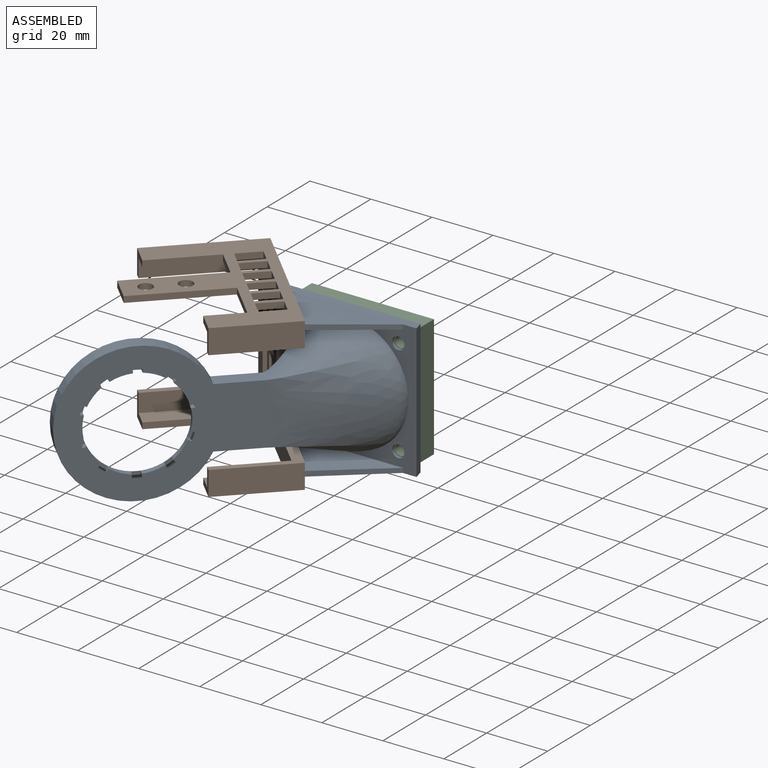
[diagram: assembled view]
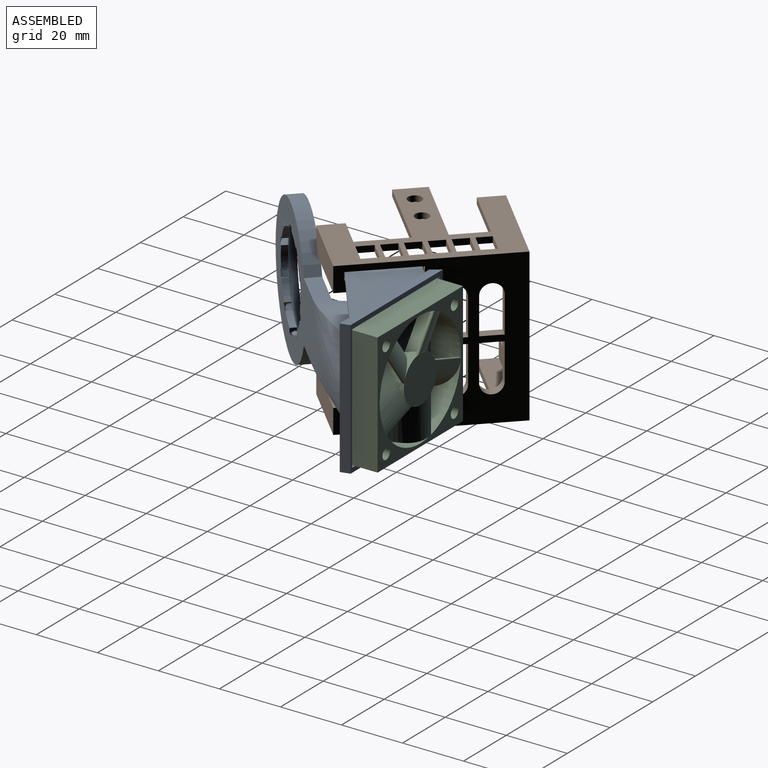
[diagram: assembled view, second angle]
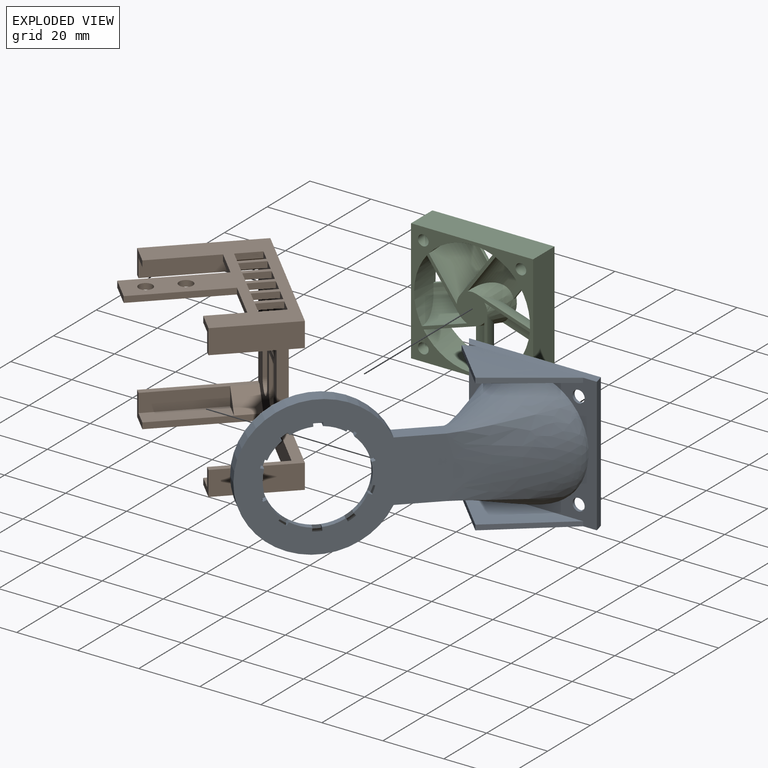
[diagram: exploded view]
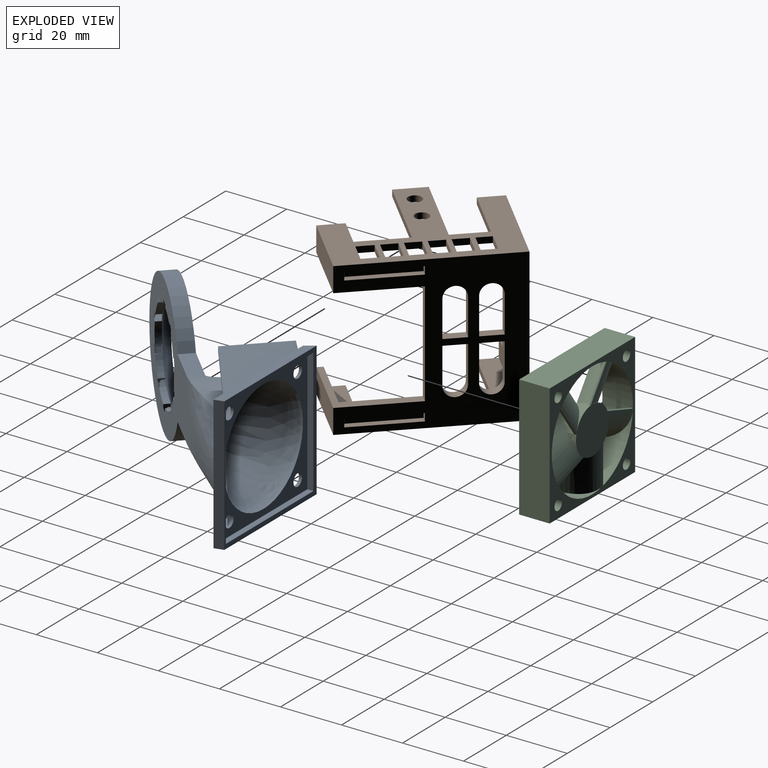
[diagram: exploded view, second angle]
ASSEMBLY  parts=3 mates=2
PART A: 132 faces, bbox 73.9x73.2x52 mm
  f0: plane 42.8x40.36mm, normal (-0.71,0.71,0), area 722.8mm2, adj f3,f4,f5,f6,f7,f8,f9,f10
  f1: plane 11.03x11.03mm, normal (0.71,-0.71,0), area 121mm2, adj f2,f93,f97,f99
  f2: cylinder r=5mm len=6.81mm, axis (0,0,-1), area 7.6mm2, adj f1,f27,f97,f99
  f3: torus R=16.71mm, axis (-0.71,0.71,0), area 12.3mm2, adj f0,f21,f52,f67
  f4: torus R=16.71mm, axis (-0.71,0.71,0), area 12.3mm2, adj f0,f21,f56,f63
  f5: torus R=16.71mm, axis (-0.71,0.71,0), area 12.3mm2, adj f0,f21,f59,f64
  f6: torus R=16.71mm, axis (-0.71,0.71,0), area 12.3mm2, adj f0,f21,f36,f55
  f7: torus R=16.71mm, axis (-0.71,0.71,0), area 12.3mm2, adj f0,f21,f48,f51
  f8: torus R=16.71mm, axis (-0.71,0.71,0), area 12.3mm2, adj f0,f21,f32,f47
  f9: torus R=16.71mm, axis (-0.71,0.71,0), area 12.3mm2, adj f0,f21,f43,f68
  f10: torus R=16.71mm, axis (-0.71,0.71,0), area 12.3mm2, adj f0,f21,f39,f60
  f11: torus R=16.71mm, axis (-0.71,0.71,0), area 12.3mm2, adj f0,f21,f25,f35,f44
  f12: torus R=16.71mm, axis (-0.71,0.71,0), area 10.6mm2, adj f0,f21,f31,f40,f101,f102,f104
  f13: torus R=21.4mm, axis (-0.71,0.71,0), area 68.7mm2, adj f0,f22,f24,f27,f29
  f14: torus R=21.4mm, axis (-0.71,0.71,0), area 68.7mm2, adj f0,f15,f23,f27,f28
  f15: cylinder r=22.2mm len=30.75mm, axis (-0.71,0.71,0), area 99.9mm2, adj f14,f17,f23,f28
  f16: torus R=21.4mm, axis (-0.71,0.71,0), area 68.7mm2, adj f18,f22,f24,f27,f29
  f17: torus R=21.4mm, axis (-0.71,0.71,0), area 68.7mm2, adj f15,f19,f23,f27,f28
  f18: plane 28.54x28.54mm, normal (0.71,-0.71,0), area 53.7mm2, adj f16,f20,f24,f27
  f19: plane 28.54x28.54mm, normal (0.71,-0.71,0), area 53.7mm2, adj f17,f20,f23,f27
  f20: torus R=20.4mm, axis (-0.71,0.71,0), area 422mm2, adj f18,f19,f21,f23,f24,f27
  f21: cone r=16.13mm half-angle=45deg, axis (-0.71,0.71,0), area 101.8mm2, adj f3,f4,f5,f6,f7,f8,f9,f10
  f22: cylinder r=22.2mm len=30.75mm, axis (-0.71,0.71,0), area 99.9mm2, adj f13,f16,f24,f29
  f23: plane 5.45x4.75mm, normal (0.12,0.12,-0.98), area 15.8mm2, adj f0,f14,f15,f17,f19,f20,f21,f25
  f24: plane 5.45x4.75mm, normal (0.12,0.12,0.98), area 15.8mm2, adj f0,f13,f16,f18,f20,f21,f22,f25
  f25: plane 5.83x0.65mm, normal (0.71,-0.71,0), area 3.8mm2, adj f11,f23,f24,f26
  f26: cone r=18.18mm half-angle=49.1deg, axis (0.71,-0.71,0), area 11.2mm2, adj f0,f23,f24,f25
  f27: plane 20.01x2.42mm, normal (-0.71,-0.71,0), area 23.3mm2, adj f0,f2,f13,f14,f16,f17,f18,f19
  f28: plane 2.49x2.49mm, normal (0,0,-1), area 1.5mm2, adj f14,f15,f17,f27
  f29: plane 2.49x2.49mm, normal (0,0,1), area 1.5mm2, adj f13,f16,f22,f27
  f30: plane 2.93x1.36mm, normal (0.71,-0.71,0), area 3.1mm2, adj f21,f31,f32,f80
  f31: plane 3.04x2.76mm, normal (-0.17,-0.17,-0.97), area 3mm2, adj f0,f12,f30,f33,f79,f83
  f32: plane 2.91x2.63mm, normal (0.28,0.28,0.92), area 3mm2, adj f0,f8,f30,f33,f75,f83
  f33: cone r=18.18mm half-angle=68.6deg, axis (-0.71,0.71,0), area 6.6mm2, adj f0,f31,f32,f83
  f34: plane 2.93x1.36mm, normal (0.71,-0.71,0), area 3.1mm2, adj f21,f35,f36,f80
  f35: plane 3.04x2.76mm, normal (0.17,0.17,0.97), area 3mm2, adj f0,f11,f34,f37,f78,f83
  f36: plane 2.91x2.63mm, normal (-0.28,-0.28,-0.92), area 3mm2, adj f0,f6,f34,f37,f73,f83
  f37: cone r=18.18mm half-angle=68.6deg, axis (-0.71,0.71,0), area 6.6mm2, adj f0,f35,f36,f83
  f38: plane 2.93x1.34mm, normal (0.71,-0.71,0), area 3.1mm2, adj f21,f39,f40,f80
  f39: plane 2.93x2.65mm, normal (0.27,0.27,-0.92), area 3mm2, adj f0,f10,f38,f41,f77,f83
  f40: plane 3.05x2.76mm, normal (-0.15,-0.15,0.98), area 3mm2, adj f0,f12,f38,f41,f79,f83
  f41: cone r=18.18mm half-angle=68.6deg, axis (-0.71,0.71,0), area 6.6mm2, adj f0,f39,f40,f83
  f42: plane 2.93x1.34mm, normal (0.71,-0.71,0), area 3.1mm2, adj f21,f43,f44,f80
  f43: plane 2.93x2.65mm, normal (-0.27,-0.27,0.92), area 3mm2, adj f0,f9,f42,f45,f76,f83
  f44: plane 3.05x2.76mm, normal (0.15,0.15,-0.98), area 3mm2, adj f0,f11,f42,f45,f78,f83
  f45: cone r=18.18mm half-angle=68.6deg, axis (-0.71,0.71,0), area 6.6mm2, adj f0,f43,f44,f83
  f46: plane 2.49x2.02mm, normal (0.71,-0.71,0), area 3.1mm2, adj f21,f47,f48,f80
  f47: plane 2.42x2.31mm, normal (-0.54,-0.54,-0.65), area 3mm2, adj f0,f8,f46,f49,f75,f83
  f48: plane 2.74x1.99mm, normal (0.61,0.61,0.51), area 3mm2, adj f0,f7,f46,f49,f74,f83
  f49: cone r=18.18mm half-angle=68.6deg, axis (-0.71,0.71,0), area 6.6mm2, adj f0,f47,f48,f83
  f50: plane 1.99x1.99mm, normal (0.71,-0.71,0), area 3.1mm2, adj f21,f51,f52,f80
  f51: plane 3.17x1.48mm, normal (-0.7,-0.7,-0.08), area 3mm2, adj f0,f7,f50,f53,f74,f83
  f52: plane 3.17x1.49mm, normal (0.7,0.7,-0.1), area 3mm2, adj f0,f3,f50,f53,f70,f83
  f53: cone r=18.18mm half-angle=68.6deg, axis (-0.71,0.71,0), area 6.6mm2, adj f0,f51,f52,f83
  f54: plane 2.49x2.02mm, normal (0.71,-0.71,0), area 3.1mm2, adj f21,f55,f56,f80
  f55: plane 2.42x2.31mm, normal (0.54,0.54,0.65), area 3mm2, adj f0,f6,f54,f57,f73,f83
  f56: plane 2.74x1.99mm, normal (-0.61,-0.61,-0.51), area 3mm2, adj f0,f4,f54,f57,f71,f83
  f57: cone r=18.18mm half-angle=68.6deg, axis (-0.71,0.71,0), area 6.6mm2, adj f0,f55,f56,f83
  f58: plane 2.52x2.02mm, normal (0.71,-0.71,0), area 3.1mm2, adj f21,f59,f60,f80
  f59: plane 2.72x2.03mm, normal (0.6,0.6,-0.52), area 3mm2, adj f0,f5,f58,f61,f72,f83
  f60: plane 2.39x2.34mm, normal (-0.53,-0.53,0.66), area 3mm2, adj f0,f10,f58,f61,f77,f83
  f61: cone r=18.18mm half-angle=68.6deg, axis (-0.71,0.71,0), area 6.6mm2, adj f0,f59,f60,f83
  f62: plane 1.99x1.99mm, normal (0.71,-0.71,0), area 3.1mm2, adj f21,f63,f64,f80
  f63: plane 3.17x1.48mm, normal (0.7,0.7,0.08), area 3mm2, adj f0,f4,f62,f65,f71,f83
  f64: plane 3.17x1.49mm, normal (-0.7,-0.7,0.1), area 3mm2, adj f0,f5,f62,f65,f72,f83
  f65: cone r=18.18mm half-angle=68.6deg, axis (-0.71,0.71,0), area 6.6mm2, adj f0,f63,f64,f83
  f66: plane 2.52x2.02mm, normal (0.71,-0.71,0), area 3.1mm2, adj f21,f67,f68,f80
  f67: plane 2.72x2.03mm, normal (-0.6,-0.6,0.52), area 3mm2, adj f0,f3,f66,f69,f70,f83
  f68: plane 2.39x2.34mm, normal (0.53,0.53,-0.66), area 3mm2, adj f0,f9,f66,f69,f76,f83
  f69: cone r=18.18mm half-angle=68.6deg, axis (-0.71,0.71,0), area 6.6mm2, adj f0,f67,f68,f83
  f70: cylinder r=15mm len=5.94mm, axis (-0.71,0.71,0), area 13.6mm2, adj f52,f67,f80,f83
  f71: cylinder r=15mm len=5.97mm, axis (-0.71,0.71,0), area 13.6mm2, adj f56,f63,f80,f83
  f72: cylinder r=15mm len=5.94mm, axis (-0.71,0.71,0), area 13.6mm2, adj f59,f64,f80,f83
  f73: cylinder r=15mm len=5.43mm, axis (-0.71,0.71,0), area 13.6mm2, adj f36,f55,f80,f83
  f74: cylinder r=15mm len=5.97mm, axis (-0.71,0.71,0), area 13.6mm2, adj f48,f51,f80,f83
  f75: cylinder r=15mm len=5.43mm, axis (-0.71,0.71,0), area 13.6mm2, adj f32,f47,f80,f83
  f76: cylinder r=15mm len=5.49mm, axis (-0.71,0.71,0), area 13.6mm2, adj f43,f68,f80,f83
  f77: cylinder r=15mm len=5.49mm, axis (-0.71,0.71,0), area 13.6mm2, adj f39,f60,f80,f83
  f78: cylinder r=15mm len=6.75mm, axis (-0.71,0.71,0), area 13.6mm2, adj f35,f44,f80,f83
  f79: cylinder r=15mm len=6.75mm, axis (-0.71,0.71,0), area 13.6mm2, adj f31,f40,f80,f83
  f80: cone r=15mm half-angle=45deg, axis (-0.71,0.71,0), area 439.8mm2, adj f30,f34,f38,f42,f46,f50,f54,f58
  f81: plane 46x41.01mm, normal (-0.71,0.71,0), area 899mm2, adj f80,f82,f84,f85,f86
  f82: cylinder r=23mm len=46mm, axis (-0.71,0.71,0), area 619.1mm2, adj f81,f83,f84,f85
  f83: plane 46x41.01mm, normal (0.71,-0.71,0), area 1178.9mm2, adj f31,f32,f33,f35,f36,f37,f39,f40
  f84: plane 13.64x13.64mm, normal (0,0,1), area 71.4mm2, adj f81,f82,f83,f87
  f85: plane 13.64x13.64mm, normal (0,0,-1), area 71.4mm2, adj f81,f82,f83,f89
  f86: bspline ~27.29x25.54mm, area 670.1mm2, adj f81,f87,f89,f111
  f87: bspline ~29.07x27.29mm, area 524.8mm2, adj f84,f86,f88,f111
  f88: bspline ~29.07x27.29mm, area 936.1mm2, adj f83,f87,f89,f111
  f89: bspline ~29.07x27.29mm, area 521.6mm2, adj f85,f86,f88,f111
  f90: bspline ~27.8x26.16mm, area 479.1mm2, adj f91,f93,f97,f131
  f91: bspline ~27.8x26.16mm, area 851.9mm2, adj f0,f90,f92,f100,f131
  f92: bspline ~27.8x26.16mm, area 479.5mm2, adj f91,f93,f96,f131
  f93: bspline ~26.16x25.39mm, area 636.2mm2, adj f1,f90,f92,f94,f100,f131
  f94: plane 11.03x11.03mm, normal (0.71,-0.71,0), area 121mm2, adj f93,f95,f96,f98
  f95: cylinder r=5mm len=6.81mm, axis (0,0,-1), area 7.6mm2, adj f27,f94,f96,f98
  f96: plane 14.22x14.13mm, normal (0,0,-1), area 56.8mm2, adj f0,f27,f92,f94,f95
  f97: plane 14.22x14.13mm, normal (0,0,1), area 56.8mm2, adj f0,f1,f2,f27,f90
  f98: plane 14.22x14.13mm, normal (0.08,0.08,0.99), area 57.2mm2, adj f0,f27,f94,f95,f100
  f99: plane 14.22x14.13mm, normal (0.08,0.08,-0.99), area 57.2mm2, adj f0,f1,f2,f27,f100
  f100: plane 2.4x2.4mm, normal (0.71,0.71,0), area 3.4mm2, adj f91,f93,f98,f99
  f101: plane 2.31x1.27mm, normal (0,0,1), area 1.7mm2, adj f0,f12,f103,f104,f105
  f102: plane 2.31x1.27mm, normal (0,0,-1), area 1.7mm2, adj f0,f12,f103,f104,f105
  f103: plane 1x0.48mm, normal (-0.71,0.71,0), area 0.7mm2, adj f21,f101,f102,f105
  f104: plane 1x0.02mm, normal (0.71,-0.71,0), area 0mm2, adj f12,f101,f102
  f105: plane 1.83x1mm, normal (-0.07,1,0), area 1.8mm2, adj f0,f101,f102,f103
  f106: cylinder r=2mm len=4mm, axis (0,-1,0), area 12.6mm2, adj f110,f111
  f107: cylinder r=2mm len=4mm, axis (0,-1,0), area 12.6mm2, adj f110,f111
  f108: cylinder r=2mm len=4mm, axis (0,-1,0), area 12.6mm2, adj f110,f111
  f109: cylinder r=2mm len=4mm, axis (0,-1,0), area 12.6mm2, adj f110,f111
  f110: plane 41x41mm, normal (0,1,0), area 555.5mm2, adj f106,f107,f108,f109,f112,f113,f114,f115
  f111: plane 44x41.9mm, normal (0,-1,0), area 518.1mm2, adj f86,f87,f88,f89,f106,f107,f108,f109
  f112: plane 41x2mm, normal (1,0,0), area 82mm2, adj f110,f113,f115,f120
  f113: plane 41x2mm, normal (0,0,1), area 82mm2, adj f110,f112,f114,f120
  f114: plane 41x2mm, normal (-1,0,0), area 82mm2, adj f110,f113,f115,f120
  f115: plane 41x2mm, normal (0,0,-1), area 82mm2, adj f110,f112,f114,f120
  f116: plane 44x3mm, normal (0,0,1), area 127.6mm2, adj f111,f117,f119,f120,f129
  f117: plane 44x3mm, normal (-0.82,-0.57,0), area 161.1mm2, adj f111,f116,f118,f120
  f118: plane 44x3mm, normal (0,0,-1), area 127.6mm2, adj f111,f117,f119,f120,f123
  f119: plane 44x3mm, normal (0.97,0.26,0), area 136.7mm2, adj f111,f116,f118,f120
  f120: plane 44x43.2mm, normal (0,1,0), area 219.6mm2, adj f112,f113,f114,f115,f116,f117,f118,f119
  f121: plane 14.99x14.99mm, normal (-0.71,-0.71,0), area 36mm2, adj f122,f123,f124,f125
  f122: plane 2.94x2.7mm, normal (-0.68,0.74,0), area 6.4mm2, adj f111,f121,f123,f125
  f123: bspline ~37.94x17.69mm, area 352.2mm2, adj f118,f121,f122,f124
  f124: plane 22.94x17.69mm, normal (0.61,-0.79,0), area 46.4mm2, adj f111,f121,f123,f125
  f125: bspline ~37.94x17.69mm, area 351.9mm2, adj f111,f121,f122,f124
  f126: plane 14.99x14.99mm, normal (-0.71,-0.71,0), area 36mm2, adj f127,f128,f129,f130
  f127: bspline ~37.94x17.69mm, area 351.9mm2, adj f111,f126,f128,f130
  f128: plane 22.94x17.69mm, normal (0.61,-0.79,0), area 46.4mm2, adj f111,f126,f127,f129
  f129: bspline ~37.94x17.69mm, area 352.2mm2, adj f116,f126,f128,f130
  f130: plane 2.94x2.7mm, normal (-0.68,0.74,0), area 6.4mm2, adj f111,f126,f127,f129
  f131: cylinder r=18.5mm len=37mm, axis (0,-1,0), area 116.2mm2, adj f90,f91,f92,f93,f110
PART B: 96 faces, bbox 63.5x56.4x50 mm
  f0: plane 50x36.42mm, normal (-0.71,-0.71,0), area 1213.5mm2, adj f2,f11,f13,f14,f16,f18,f20,f21
  f1: plane 8.49x8.49mm, normal (-0.71,0.71,0), area 24mm2, adj f11,f14,f17,f74
  f2: plane 5.66x5.66mm, normal (0.71,-0.71,0), area 16mm2, adj f0,f14,f54,f92
  f3: plane 15.56x15.56mm, normal (0.71,0.71,0), area 19mm2, adj f5,f35,f36,f47,f63,f64,f65,f66
  f4: plane 17.18x17.18mm, normal (0,0,-1), area 50.6mm2, adj f34,f46,f53,f62
  f5: plane 17.18x17.18mm, normal (0,0,1), area 50.6mm2, adj f3,f35,f36,f53
  f6: plane 14.85x14.85mm, normal (0,0,1), area 90mm2, adj f7,f21,f22,f61
  f7: plane 10.61x10.61mm, normal (-0.71,0.71,0), area 90mm2, adj f6,f18,f22,f61
  f8: plane 10.61x10.61mm, normal (-0.71,0.71,0), area 90mm2, adj f11,f16,f17,f59
  f9: plane 17.68x17.68mm, normal (0.71,-0.71,0), area 150mm2, adj f10,f27,f29,f57
  f10: plane 21.92x21.92mm, normal (0,0,1), area 150mm2, adj f9,f28,f29,f57
  f11: plane 52.68x45.61mm, normal (0,0,-1), area 689.5mm2, adj f0,f1,f8,f12,f17,f25,f26,f55
  f12: plane 17.68x17.68mm, normal (0.71,-0.71,0), area 150mm2, adj f11,f23,f26,f55
  f13: plane 5.66x5.66mm, normal (-0.71,0.71,0), area 16mm2, adj f0,f14,f58,f73
  f14: plane 63.5x56.43mm, normal (0,0,1), area 1074mm2, adj f0,f1,f2,f13,f15,f17,f24,f25
  f15: plane 18.6x18.6mm, normal (0.71,-0.71,0), area 210.4mm2, adj f14,f16,f17,f53
  f16: plane 36.27x20.01mm, normal (0,0,-1), area 128.5mm2, adj f0,f8,f15,f17,f48,f53,f58
  f17: plane 8x5.66mm, normal (-0.71,-0.71,0), area 28mm2, adj f1,f8,f11,f14,f15,f16
  f18: plane 36.27x20.01mm, normal (0,0,1), area 128.5mm2, adj f0,f7,f19,f22,f48,f53,f60
  f19: plane 18.6x18.6mm, normal (0.71,-0.71,0), area 210.4mm2, adj f18,f20,f22,f53
  f20: plane 63.5x56.43mm, normal (0,0,-1), area 624.5mm2, adj f0,f19,f21,f22,f24,f28,f29,f53
  f21: plane 16.26x16.26mm, normal (-0.71,0.71,0), area 46mm2, adj f0,f6,f20,f22,f60
  f22: plane 8x5.66mm, normal (-0.71,-0.71,0), area 28mm2, adj f6,f7,f18,f19,f20,f21
  f23: plane 24.75x24.75mm, normal (0,0,-1), area 66mm2, adj f0,f12,f24,f26,f54
  f24: plane 50x25.67mm, normal (-0.71,0.71,0), area 693mm2, adj f0,f14,f20,f23,f26,f27,f29,f53
  f25: plane 15.56x15.56mm, normal (0.71,-0.71,0), area 44mm2, adj f11,f14,f26,f91
  f26: plane 8x5.66mm, normal (-0.71,-0.71,0), area 28mm2, adj f11,f12,f14,f23,f24,f25
  f27: plane 24.75x24.75mm, normal (0,0,1), area 66mm2, adj f0,f9,f24,f29,f56
  f28: plane 23.33x23.33mm, normal (0.71,-0.71,0), area 66mm2, adj f0,f10,f20,f29,f56
  f29: plane 8x5.66mm, normal (-0.71,-0.71,0), area 28mm2, adj f9,f10,f20,f24,f27,f28
  f30: plane 11.98x2.33mm, normal (-0.71,0.71,0), area 39.5mm2, adj f0,f31,f52,f53
  f31: plane 7.28x7.28mm, normal (0,0,-1), area 23.1mm2, adj f0,f30,f32,f53
  f32: plane 11.98x2.33mm, normal (0.71,-0.71,0), area 39.5mm2, adj f0,f31,f52,f53
  f33: plane 17.18x17.18mm, normal (0,0,1), area 50.6mm2, adj f34,f46,f53,f62
  f34: plane 2.5x1.63mm, normal (-0.71,0.71,0), area 5.8mm2, adj f4,f33,f53,f62
  f35: plane 2.5x1.63mm, normal (0.71,-0.71,0), area 5.8mm2, adj f3,f5,f47,f53
  f36: plane 2.5x1.63mm, normal (-0.71,0.71,0), area 5.8mm2, adj f3,f5,f47,f53
  f37: plane 7.28x7.28mm, normal (0,0,-1), area 23.1mm2, adj f0,f38,f49,f53
  f38: plane 11.98x2.33mm, normal (0.71,-0.71,0), area 39.5mm2, adj f0,f37,f39,f53
  f39: cylinder r=3.5mm len=7.28mm, axis (-0.71,-0.71,0), area 36.3mm2, adj f0,f38,f49,f53
  f40: plane 7.28x7.28mm, normal (0,0,1), area 23.1mm2, adj f0,f41,f50,f53
  f41: plane 11.98x2.33mm, normal (-0.71,0.71,0), area 39.5mm2, adj f0,f40,f42,f53
  f42: cylinder r=3.5mm len=7.28mm, axis (-0.71,-0.71,0), area 36.3mm2, adj f0,f41,f50,f53
  f43: plane 11.98x2.33mm, normal (0.71,-0.71,0), area 39.5mm2, adj f0,f44,f51,f53
  f44: plane 7.28x7.28mm, normal (0,0,1), area 23.1mm2, adj f0,f43,f45,f53
  f45: plane 11.98x2.33mm, normal (-0.71,0.71,0), area 39.5mm2, adj f0,f44,f51,f53
  f46: plane 2.5x1.63mm, normal (0.71,-0.71,0), area 5.8mm2, adj f4,f33,f53,f62
  f47: plane 17.18x17.18mm, normal (0,0,-1), area 50.6mm2, adj f3,f35,f36,f53
  f48: plane 34x2.33mm, normal (0.71,-0.71,0), area 112.2mm2, adj f0,f16,f18,f53
  f49: plane 11.98x2.33mm, normal (-0.71,0.71,0), area 39.5mm2, adj f0,f37,f39,f53
  f50: plane 11.98x2.33mm, normal (0.71,-0.71,0), area 39.5mm2, adj f0,f40,f42,f53
  f51: cylinder r=3.5mm len=7.28mm, axis (-0.71,-0.71,0), area 36.3mm2, adj f0,f43,f45,f53
  f52: cylinder r=3.5mm len=7.28mm, axis (-0.71,-0.71,0), area 36.3mm2, adj f0,f30,f32,f53
  f53: plane 50x37.83mm, normal (0.71,0.71,0), area 1302.5mm2, adj f4,f5,f14,f15,f16,f18,f19,f20
  f54: plane 9.9x9.9mm, normal (0.5,-0.5,-0.71), area 67.9mm2, adj f0,f2,f23,f55
  f55: plane 6x4.24mm, normal (-0.71,-0.71,0), area 18mm2, adj f11,f12,f54
  f56: plane 9.9x9.9mm, normal (0.5,-0.5,0.71), area 67.9mm2, adj f0,f27,f28,f57
  f57: plane 6x4.24mm, normal (-0.71,-0.71,0), area 18mm2, adj f9,f10,f56
  f58: plane 9.9x9.9mm, normal (-0.5,0.5,-0.71), area 67.9mm2, adj f0,f13,f16,f59
  f59: plane 6x4.24mm, normal (-0.71,-0.71,0), area 18mm2, adj f8,f11,f58
  f60: plane 9.9x9.9mm, normal (-0.5,0.5,0.71), area 67.9mm2, adj f0,f18,f21,f61
  f61: plane 6x4.24mm, normal (-0.71,-0.71,0), area 18mm2, adj f6,f7,f60
  f62: plane 15.56x15.56mm, normal (0.71,0.71,0), area 19mm2, adj f4,f33,f34,f46,f68,f69,f70,f71
  f63: plane 15.13x15.13mm, normal (0,0,1), area 4.2mm2, adj f3,f64,f66,f67
  f64: plane 1.7x0.14mm, normal (0.71,-0.71,0), area 0.3mm2, adj f3,f63,f65,f67
  f65: plane 15.13x15.13mm, normal (0,0,-1), area 4.2mm2, adj f3,f64,f66,f67
  f66: plane 1.7x0.14mm, normal (-0.71,0.71,0), area 0.3mm2, adj f3,f63,f65,f67
  f67: plane 14.99x14.99mm, normal (0.71,0.71,0), area 36mm2, adj f63,f64,f65,f66
  f68: plane 1.7x0.14mm, normal (0.71,-0.71,0), area 0.3mm2, adj f62,f69,f71,f72
  f69: plane 15.13x15.13mm, normal (0,0,-1), area 4.2mm2, adj f62,f68,f70,f72
  f70: plane 1.7x0.14mm, normal (-0.71,0.71,0), area 0.3mm2, adj f62,f69,f71,f72
  f71: plane 15.13x15.13mm, normal (0,0,1), area 4.2mm2, adj f62,f68,f70,f72
  f72: plane 14.99x14.99mm, normal (0.71,0.71,0), area 36mm2, adj f68,f69,f70,f71
  f73: plane 3.71x3.71mm, normal (0.71,0.71,0), area 10.5mm2, adj f11,f13,f14,f87
  f74: plane 11.31x11.31mm, normal (-0.71,-0.71,0), area 32mm2, adj f1,f11,f14,f88
  f75: plane 5.66x5.66mm, normal (0.71,-0.71,0), area 16mm2, adj f0,f11,f14,f76
  f76: plane 3.54x3.54mm, normal (0.71,0.71,0), area 10mm2, adj f11,f14,f75,f77
  f77: plane 5.66x5.66mm, normal (-0.71,0.71,0), area 16mm2, adj f0,f11,f14,f76
  f78: plane 5.66x5.66mm, normal (0.71,-0.71,0), area 16mm2, adj f0,f11,f14,f79
  f79: plane 3.54x3.54mm, normal (0.71,0.71,0), area 10mm2, adj f11,f14,f78,f80
  f80: plane 5.66x5.66mm, normal (-0.71,0.71,0), area 16mm2, adj f0,f11,f14,f79
  f81: plane 5.66x5.66mm, normal (0.71,-0.71,0), area 16mm2, adj f0,f11,f14,f82
  f82: plane 3.54x3.54mm, normal (0.71,0.71,0), area 10mm2, adj f11,f14,f81,f83
  f83: plane 5.66x5.66mm, normal (-0.71,0.71,0), area 16mm2, adj f0,f11,f14,f82
  f84: plane 5.66x5.66mm, normal (0.71,-0.71,0), area 16mm2, adj f0,f11,f14,f85
  f85: plane 3.54x3.54mm, normal (0.71,0.71,0), area 10mm2, adj f11,f14,f84,f86
  f86: plane 5.66x5.66mm, normal (-0.71,0.71,0), area 16mm2, adj f0,f11,f14,f85
  f87: plane 5.66x5.66mm, normal (0.71,-0.71,0), area 16mm2, adj f0,f11,f14,f73
  f88: plane 21.84x21.84mm, normal (0.71,-0.71,0), area 61.8mm2, adj f11,f14,f74,f89
  f89: plane 7.07x7.07mm, normal (-0.71,-0.71,0), area 20mm2, adj f11,f14,f88,f90
  f90: plane 21.84x21.84mm, normal (-0.71,0.71,0), area 61.8mm2, adj f11,f14,f89,f91
  f91: plane 8.13x8.13mm, normal (-0.71,-0.71,0), area 23mm2, adj f11,f14,f25,f90
  f92: plane 3.36x3.36mm, normal (0.71,0.71,0), area 9.5mm2, adj f2,f11,f14,f93
  f93: plane 5.66x5.66mm, normal (-0.71,0.71,0), area 16mm2, adj f0,f11,f14,f92
  f94: cylinder r=2.25mm len=4.5mm, axis (0,0,-1), area 28.3mm2, adj f11,f14
  f95: cylinder r=2.25mm len=4.5mm, axis (0,0,-1), area 28.3mm2, adj f11,f14
PART C: 36 faces, bbox 40x10x40 mm
  f0: cylinder r=19mm len=27.8mm, axis (0,1,0), area 223.5mm2, adj f13,f14,f21,f25,f26
  f1: cylinder r=19mm len=23.91mm, axis (0,1,0), area 223.5mm2, adj f13,f14,f22,f23,f35
  f2: cylinder r=19mm len=28.97mm, axis (0,1,0), area 223.5mm2, adj f13,f14,f24,f28,f29
  f3: cylinder r=19mm len=27.31mm, axis (0,1,0), area 223.5mm2, adj f13,f14,f27,f31,f32
  f4: cylinder r=19mm len=22.97mm, axis (0,1,0), area 223.5mm2, adj f13,f14,f30,f33,f34
  f5: plane 40x10mm, normal (0,0,1), area 400mm2, adj f6,f12,f13,f14
  f6: plane 40x10mm, normal (-1,0,0), area 400mm2, adj f5,f7,f13,f14
  f7: plane 40x10mm, normal (0,0,-1), area 400mm2, adj f6,f12,f13,f14
  f8: cylinder r=1.75mm len=10mm, axis (0,1,0), area 110mm2, adj f13,f14
  f9: cylinder r=1.75mm len=10mm, axis (0,1,0), area 110mm2, adj f13,f14
  f10: cylinder r=1.75mm len=10mm, axis (0,1,0), area 110mm2, adj f13,f14
  f11: cylinder r=1.75mm len=10mm, axis (0,1,0), area 110mm2, adj f13,f14
  f12: plane 40x10mm, normal (1,0,0), area 400mm2, adj f5,f7,f13,f14
  f13: plane 40x40mm, normal (0,-1,0), area 427.4mm2, adj f0,f1,f2,f3,f4,f5,f6,f7
  f14: plane 40x40mm, normal (0,1,0), area 587.9mm2, adj f0,f1,f2,f3,f4,f5,f6,f7
  f15: cone r=5mm half-angle=15deg, axis (0,-1,0), area 62.9mm2, adj f14,f20,f22,f23,f35
  f16: cone r=5mm half-angle=15deg, axis (0,-1,0), area 62.9mm2, adj f14,f20,f30,f33,f34
  f17: cone r=5mm half-angle=15deg, axis (0,-1,0), area 62.9mm2, adj f14,f20,f27,f31,f32
  f18: cone r=5mm half-angle=15deg, axis (0,-1,0), area 62.9mm2, adj f14,f20,f24,f28,f29
  f19: cone r=5mm half-angle=15deg, axis (0,-1,0), area 62.9mm2, adj f14,f20,f21,f25,f26
  f20: plane 15.36x15.36mm, normal (0,-1,0), area 185.3mm2, adj f15,f16,f17,f18,f19
  f21: cylinder r=10mm len=20.92mm, axis (-0.31,0,0.95), area 206.7mm2, adj f0,f14,f19,f23
  f22: cylinder r=9mm len=17.99mm, axis (-0.31,0,0.95), area 183.6mm2, adj f1,f14,f15,f23
  f23: cylinder r=0.78mm len=12.33mm, axis (-0.31,0,0.95), area 13.9mm2, adj f1,f15,f21,f22
  f24: cylinder r=10mm len=21.05mm, axis (0.81,0,0.59), area 206.7mm2, adj f2,f14,f18,f25
  f25: cylinder r=0.78mm len=10.54mm, axis (0.81,0,0.59), area 13.9mm2, adj f0,f19,f24,f26
  f26: cylinder r=9mm len=18.23mm, axis (0.81,0,0.59), area 183.6mm2, adj f0,f14,f19,f25
  f27: cylinder r=10mm len=21.05mm, axis (0.81,0,-0.59), area 206.7mm2, adj f3,f14,f17,f28
  f28: cylinder r=0.78mm len=10.54mm, axis (0.81,0,-0.59), area 13.9mm2, adj f2,f18,f27,f29
  f29: cylinder r=9mm len=18.23mm, axis (0.81,0,-0.59), area 183.6mm2, adj f2,f14,f18,f28
  f30: cylinder r=10mm len=20.92mm, axis (-0.31,0,-0.95), area 206.7mm2, adj f4,f14,f16,f31
  f31: cylinder r=0.78mm len=12.33mm, axis (-0.31,0,-0.95), area 13.9mm2, adj f3,f17,f30,f32
  f32: cylinder r=9mm len=17.99mm, axis (-0.31,0,-0.95), area 183.6mm2, adj f3,f14,f17,f31
  f33: cylinder r=0.78mm len=12.9mm, axis (-1,0,0), area 13.9mm2, adj f4,f16,f34,f35
  f34: cylinder r=9mm len=15.99mm, axis (-1,0,0), area 183.6mm2, adj f4,f14,f16,f33
  f35: cylinder r=10mm len=18.75mm, axis (-1,0,0), area 206.7mm2, adj f1,f14,f15,f33
PLACE A t=(15.47,-6.36,8.07)mm
PLACE B t=(15.47,-6.36,8.07)mm
PLACE C rot(axis=(0.71,0,-0.71),180deg) t=(15.47,-5.36,8.07)mm
MATE fastened A.f126 <-> B.f72  axis (-0.71,-0.71,0) through (2.53,-16.55,29.82)mm
MATE fastened C.f11 <-> A.f106  axis (0,-1,0) through (31.47,-5.36,24.07)mm
